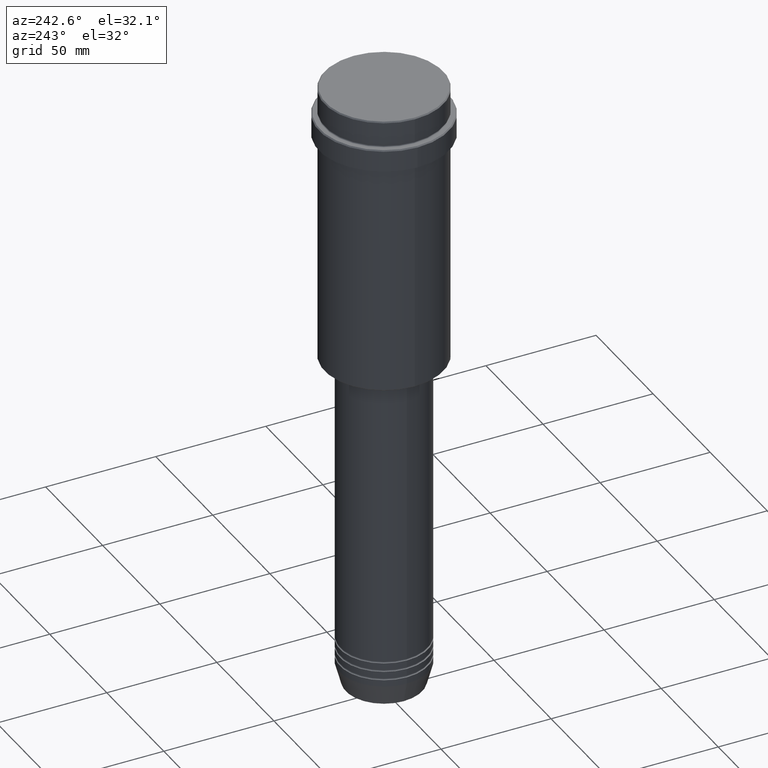
[diagram: clean part render]
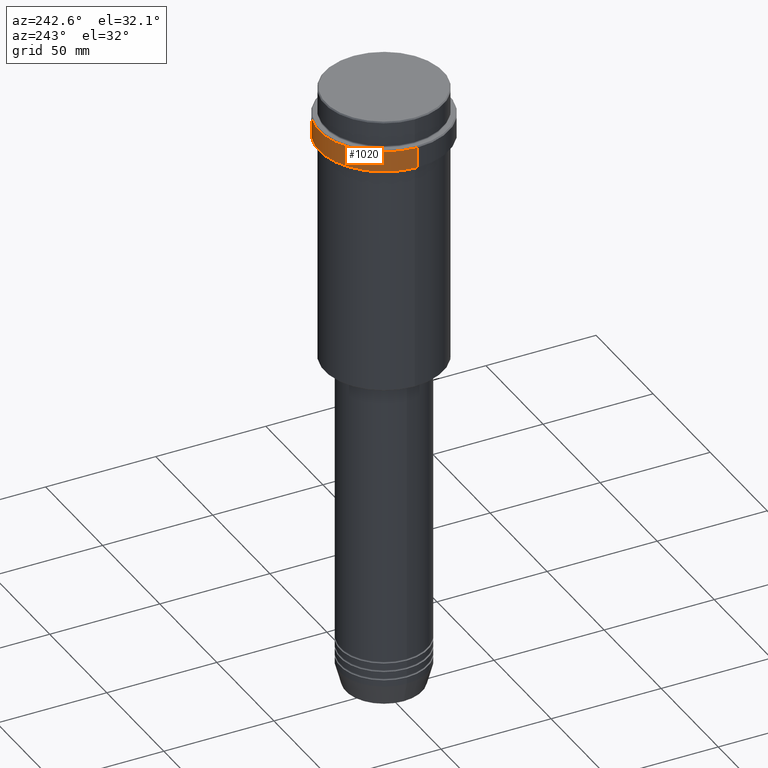
[diagram: same view with one face highlighted and labeled with its STEP entity id]
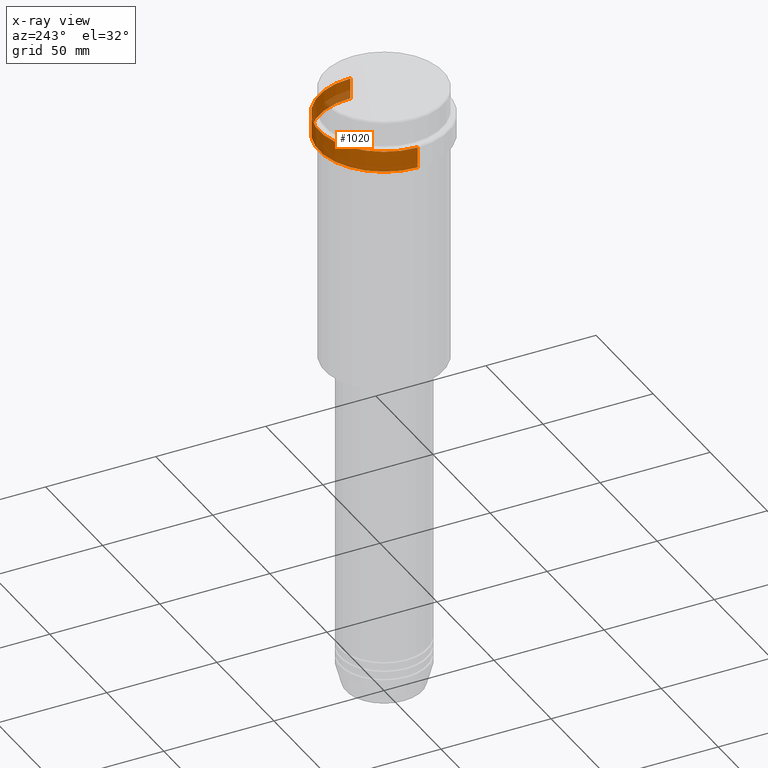
[diagram: x-ray of the same camera — body ghosted, the highlighted face saturated]
A machine part, auxiliary view. The second image highlights one B-rep face of the part: STEP entity #1020.
The next image is the same camera in x-ray: the body ghosted, the highlighted face saturated — about 8% of this face is hidden behind the body in this view.
In plain terms, the highlighted cylindrical surface (partial cylindrical patch) has radius 29.5 mm, axis along (-0, -0, 1).
Its self-contained STEP definition (entity closure, byte-faithful):
#6 = DIRECTION ( 'NONE',  ( -0.000000000000000000, -0.000000000000000000, 1.000000000000000000 ) ) ;
#22 = CARTESIAN_POINT ( 'NONE',  ( -29.49999999999999645, 3.612708057484690815E-15, -22.00000000000000711 ) ) ;
#57 = CARTESIAN_POINT ( 'NONE',  ( -29.50000000000000000, 3.612708057484691604E-15, -12.50000000000000355 ) ) ;
#78 = FACE_OUTER_BOUND ( 'NONE', #1158, .T. ) ;
#103 = CARTESIAN_POINT ( 'NONE',  ( 29.50000000000000000, 0.000000000000000000, -12.50000000000000355 ) ) ;
#108 = VERTEX_POINT ( 'NONE', #57 ) ;
#121 = EDGE_CURVE ( 'NONE', #1066, #226, #1279, .T. ) ;
#226 = VERTEX_POINT ( 'NONE', #103 ) ;
#242 = AXIS2_PLACEMENT_3D ( 'NONE', #1315, #332, #323 ) ;
#279 = VERTEX_POINT ( 'NONE', #22 ) ;
#323 = DIRECTION ( 'NONE',  ( 1.000000000000000000, 0.000000000000000000, 0.000000000000000000 ) ) ;
#332 = DIRECTION ( 'NONE',  ( 0.000000000000000000, 0.000000000000000000, -1.000000000000000000 ) ) ;
#343 = DIRECTION ( 'NONE',  ( 1.000000000000000000, 0.000000000000000000, 0.000000000000000000 ) ) ;
#346 = ORIENTED_EDGE ( 'NONE', *, *, #121, .F. ) ;
#415 = CARTESIAN_POINT ( 'NONE',  ( 29.49999999999999645, 0.000000000000000000, -22.00000000000000711 ) ) ;
#465 = EDGE_CURVE ( 'NONE', #1066, #279, #1182, .T. ) ;
#513 = LINE ( 'NONE', #601, #1265 ) ;
#555 = CIRCLE ( 'NONE', #242, 29.50000000000000000 ) ;
#601 = CARTESIAN_POINT ( 'NONE',  ( -29.50000000000000000, 3.612708057484691604E-15, 0.000000000000000000 ) ) ;
#608 = CARTESIAN_POINT ( 'NONE',  ( 29.50000000000000000, 0.000000000000000000, 0.000000000000000000 ) ) ;
#864 = VECTOR ( 'NONE', #1170, 1000.000000000000000 ) ;
#866 = AXIS2_PLACEMENT_3D ( 'NONE', #1331, #1091, #343 ) ;
#879 = DIRECTION ( 'NONE',  ( 1.000000000000000000, 0.000000000000000000, 0.000000000000000000 ) ) ;
#889 = CYLINDRICAL_SURFACE ( 'NONE', #866, 29.50000000000000000 ) ;
#896 = EDGE_CURVE ( 'NONE', #279, #108, #513, .T. ) ;
#924 = ORIENTED_EDGE ( 'NONE', *, *, #1400, .T. ) ;
#954 = DIRECTION ( 'NONE',  ( -0.000000000000000000, -0.000000000000000000, 1.000000000000000000 ) ) ;
#1007 = ORIENTED_EDGE ( 'NONE', *, *, #465, .T. ) ;
#1020 = ADVANCED_FACE ( 'NONE', ( #78 ), #889, .T. ) ;
#1066 = VERTEX_POINT ( 'NONE', #415 ) ;
#1091 = DIRECTION ( 'NONE',  ( -0.000000000000000000, -0.000000000000000000, 1.000000000000000000 ) ) ;
#1158 = EDGE_LOOP ( 'NONE', ( #1007, #1276, #924, #346 ) ) ;
#1170 = DIRECTION ( 'NONE',  ( -0.000000000000000000, -0.000000000000000000, 1.000000000000000000 ) ) ;
#1182 = CIRCLE ( 'NONE', #1264, 29.49999999999999645 ) ;
#1218 = CARTESIAN_POINT ( 'NONE',  ( 0.000000000000000000, 0.000000000000000000, -22.00000000000000711 ) ) ;
#1264 = AXIS2_PLACEMENT_3D ( 'NONE', #1218, #6, #879 ) ;
#1265 = VECTOR ( 'NONE', #954, 1000.000000000000000 ) ;
#1276 = ORIENTED_EDGE ( 'NONE', *, *, #896, .T. ) ;
#1279 = LINE ( 'NONE', #608, #864 ) ;
#1315 = CARTESIAN_POINT ( 'NONE',  ( 0.000000000000000000, 0.000000000000000000, -12.50000000000000355 ) ) ;
#1331 = CARTESIAN_POINT ( 'NONE',  ( 0.000000000000000000, 0.000000000000000000, 0.000000000000000000 ) ) ;
#1400 = EDGE_CURVE ( 'NONE', #108, #226, #555, .T. ) ;